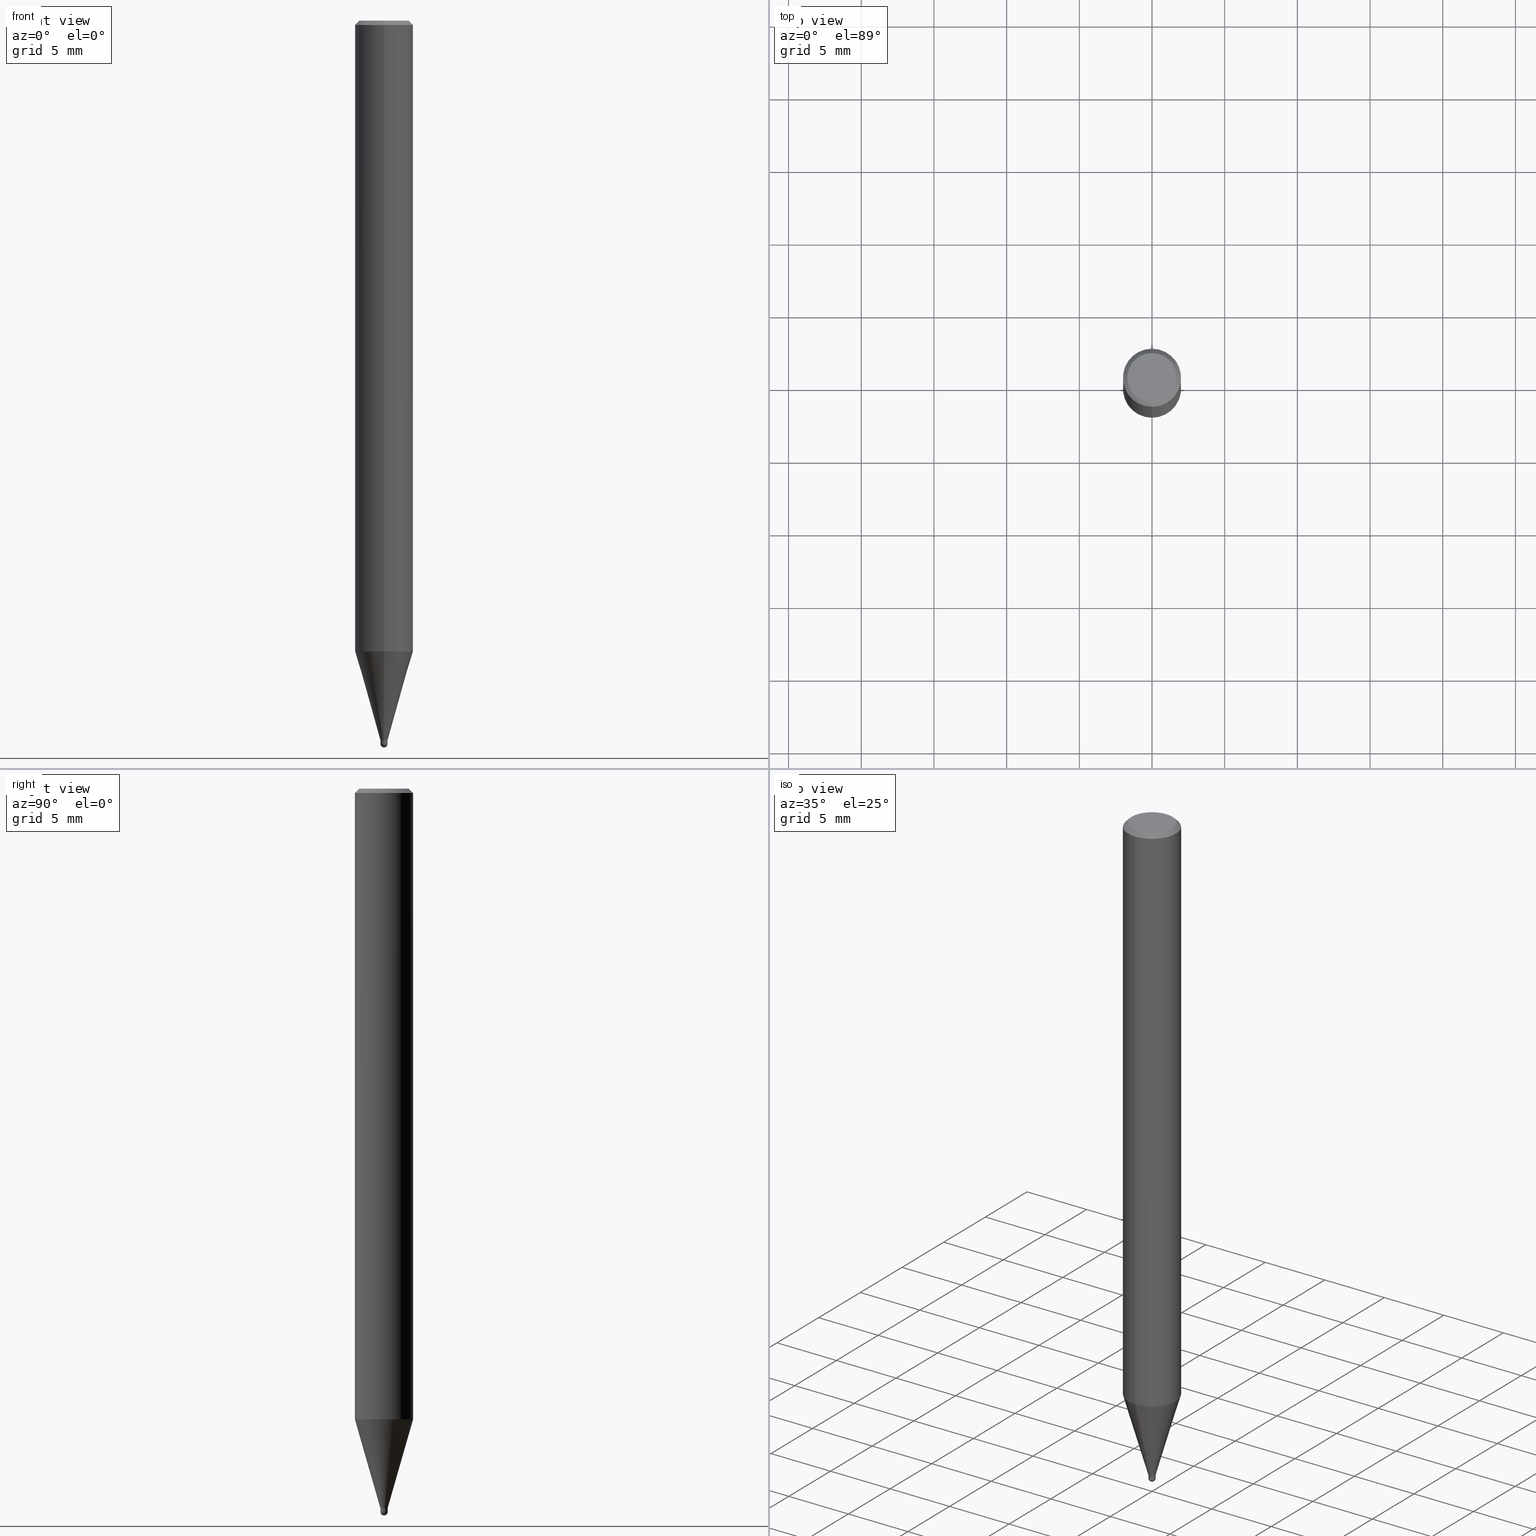
[diagram: canonical four-view strip — front | top / right | iso, engineering-drawing reading convention]
A machine part, canonical four-view strip (front | top / right | iso — engineering-drawing reading convention). The complete STEP part file that produces these views, byte-faithful:
ISO-10303-21;
HEADER;
FILE_DESCRIPTION(('no description'),'unknown implementation level');
FILE_NAME('HSB2005-0050-Huellk.stp','  ',('CIMSOURCE GmbH'),('CADClick - KiM GmbH - www.kimweb.de'),'unknown preprocess','ACIS','unknown authorization');
FILE_SCHEMA(('automotive_design'));
ENDSEC;
DATA;
#1=MECHANICAL_DESIGN_GEOMETRIC_PRESENTATION_REPRESENTATION(' ',(#14,#15,#16,#17,#18,#19,#20,#21,#22,#23,#24,#25,#26,#27,#28,#29,#30,#31,#32,#33,#34,#35,#36,#37,#38,#39,#40,#41,#42,#43,#44,#45,#46,#47,#48,#49,#50,#51,#52,#53,#54,#55,#56,#57,#58,#59,#60,#61,#62,#63,#64,#65,#66),#10);
#2=PRODUCT_DEFINITION_CONTEXT('',#67,'design');
#3=APPLICATION_PROTOCOL_DEFINITION('INTERNATIONAL STANDARD','automotive_design',1994,#67);
#4=PRODUCT_CATEGORY_RELATIONSHIP('NONE','NONE',#68,#69);
#5=SHAPE_DEFINITION_REPRESENTATION(#70,#71);
#6=PRODUCT_DEFINITION_CONTEXT('',#72,'design');
#7=APPLICATION_PROTOCOL_DEFINITION('INTERNATIONAL STANDARD','automotive_design',1994,#72);
#8=PRODUCT_CATEGORY_RELATIONSHIP('NONE','NONE',#73,#74);
#9=SHAPE_DEFINITION_REPRESENTATION(#75,#76);
#10= (GEOMETRIC_REPRESENTATION_CONTEXT(3)GLOBAL_UNCERTAINTY_ASSIGNED_CONTEXT((#79))GLOBAL_UNIT_ASSIGNED_CONTEXT((#81,#82,#83))REPRESENTATION_CONTEXT('NONE','WORKSPACE'));
#14=STYLED_ITEM('',(#85),#86);
#15=STYLED_ITEM('',(#87),#88);
#16=STYLED_ITEM('',(#89),#90);
#17=STYLED_ITEM('',(#91),#92);
#18=STYLED_ITEM('',(#93),#94);
#19=STYLED_ITEM('',(#95),#96);
#20=STYLED_ITEM('',(#97),#98);
#21=STYLED_ITEM('',(#99),#100);
#22=STYLED_ITEM('',(#101),#102);
#23=STYLED_ITEM('',(#103),#104);
#24=STYLED_ITEM('',(#105),#106);
#25=STYLED_ITEM('',(#107),#108);
#26=STYLED_ITEM('',(#109),#110);
#27=STYLED_ITEM('',(#111),#112);
#28=STYLED_ITEM('',(#113),#114);
#29=STYLED_ITEM('',(#115),#116);
#30=STYLED_ITEM('',(#117),#118);
#31=STYLED_ITEM('',(#119),#120);
#32=STYLED_ITEM('',(#121),#122);
#33=STYLED_ITEM('',(#123),#124);
#34=STYLED_ITEM('',(#125),#126);
#35=STYLED_ITEM('',(#127),#128);
#36=STYLED_ITEM('',(#129),#130);
#37=STYLED_ITEM('',(#131),#132);
#38=STYLED_ITEM('',(#133),#134);
#39=STYLED_ITEM('',(#135),#136);
#40=STYLED_ITEM('',(#137),#138);
#41=STYLED_ITEM('',(#139),#140);
#42=STYLED_ITEM('',(#141),#142);
#43=STYLED_ITEM('',(#143),#144);
#44=STYLED_ITEM('',(#145),#146);
#45=STYLED_ITEM('',(#147),#148);
#46=STYLED_ITEM('',(#149),#150);
#47=STYLED_ITEM('',(#151),#152);
#48=STYLED_ITEM('',(#153),#154);
#49=STYLED_ITEM('',(#155),#156);
#50=STYLED_ITEM('',(#157),#158);
#51=STYLED_ITEM('',(#159),#160);
#52=STYLED_ITEM('',(#161),#162);
#53=STYLED_ITEM('',(#163),#164);
#54=STYLED_ITEM('',(#165),#166);
#55=STYLED_ITEM('',(#167),#168);
#56=STYLED_ITEM('',(#169),#170);
#57=STYLED_ITEM('',(#171),#172);
#58=STYLED_ITEM('',(#173),#174);
#59=STYLED_ITEM('',(#175),#176);
#60=STYLED_ITEM('',(#177),#178);
#61=STYLED_ITEM('',(#179),#180);
#62=STYLED_ITEM('',(#181),#182);
#63=STYLED_ITEM('',(#183),#184);
#64=STYLED_ITEM('',(#185),#186);
#65=STYLED_ITEM('',(#187),#188);
#66=STYLED_ITEM('',(#189),#190);
#67=APPLICATION_CONTEXT(' ');
#68=PRODUCT_CATEGORY('part','NONE');
#69=PRODUCT_RELATED_PRODUCT_CATEGORY('detail',' ',(#191));
#70=PRODUCT_DEFINITION_SHAPE('NONE','NONE',#192);
#71=ADVANCED_BREP_SHAPE_REPRESENTATION('1',(#142,#193),#10);
#72=APPLICATION_CONTEXT(' ');
#73=PRODUCT_CATEGORY('part','NONE');
#74=PRODUCT_RELATED_PRODUCT_CATEGORY('detail',' ',(#194));
#75=PRODUCT_DEFINITION_SHAPE('NONE','NONE',#195);
#76=ADVANCED_BREP_SHAPE_REPRESENTATION('2',(#146,#196),#10);
#79=UNCERTAINTY_MEASURE_WITH_UNIT(LENGTH_MEASURE(1.0E-006),#81,'','');
#81= (CONVERSION_BASED_UNIT('MILLIMETRE',#199)LENGTH_UNIT()NAMED_UNIT(#202));
#82= (NAMED_UNIT(#204)PLANE_ANGLE_UNIT()SI_UNIT($,.RADIAN.));
#83= (NAMED_UNIT(#204)SOLID_ANGLE_UNIT()SI_UNIT($,.STERADIAN.));
#85=PRESENTATION_STYLE_ASSIGNMENT((#210));
#86=EDGE_CURVE('',#156,#134,#211,.T.);
#87=PRESENTATION_STYLE_ASSIGNMENT((#212));
#88=EDGE_CURVE('',#140,#98,#213,.T.);
#89=PRESENTATION_STYLE_ASSIGNMENT((#214));
#90=EDGE_CURVE('',#98,#140,#215,.T.);
#91=PRESENTATION_STYLE_ASSIGNMENT((#216));
#92=EDGE_CURVE('',#150,#134,#217,.T.);
#93=PRESENTATION_STYLE_ASSIGNMENT((#218));
#94=VERTEX_POINT('',#219);
#95=PRESENTATION_STYLE_ASSIGNMENT((#220));
#96=EDGE_CURVE('',#94,#98,#221,.T.);
#97=PRESENTATION_STYLE_ASSIGNMENT((#222));
#98=VERTEX_POINT('',#223);
#99=PRESENTATION_STYLE_ASSIGNMENT((#224));
#100=EDGE_CURVE('',#94,#150,#225,.T.);
#101=PRESENTATION_STYLE_ASSIGNMENT((#226));
#102=EDGE_CURVE('',#106,#122,#227,.T.);
#103=PRESENTATION_STYLE_ASSIGNMENT((#228));
#104=ADVANCED_FACE('',(#229),#230,.T.);
#105=PRESENTATION_STYLE_ASSIGNMENT((#231));
#106=VERTEX_POINT('',#232);
#107=PRESENTATION_STYLE_ASSIGNMENT((#233));
#108=ADVANCED_FACE('',(#234),#235,.T.);
#109=PRESENTATION_STYLE_ASSIGNMENT((#236));
#110=ADVANCED_FACE('',(#237),#238,.T.);
#111=PRESENTATION_STYLE_ASSIGNMENT((#239));
#112=EDGE_CURVE('',#150,#94,#240,.T.);
#113=PRESENTATION_STYLE_ASSIGNMENT((#241));
#114=EDGE_CURVE('',#126,#174,#242,.T.);
#115=PRESENTATION_STYLE_ASSIGNMENT((#243));
#116=ADVANCED_FACE('',(#244),#245,.T.);
#117=PRESENTATION_STYLE_ASSIGNMENT((#246));
#118=ADVANCED_FACE('',(#247),#248,.T.);
#119=PRESENTATION_STYLE_ASSIGNMENT((#249));
#120=EDGE_CURVE('',#172,#190,#250,.T.);
#121=PRESENTATION_STYLE_ASSIGNMENT((#251));
#122=VERTEX_POINT('',#252);
#123=PRESENTATION_STYLE_ASSIGNMENT((#253));
#124=VERTEX_POINT('',#254);
#125=PRESENTATION_STYLE_ASSIGNMENT((#255));
#126=VERTEX_POINT('',#256);
#127=PRESENTATION_STYLE_ASSIGNMENT((#257));
#128=ADVANCED_FACE('',(#258),#259,.T.);
#129=PRESENTATION_STYLE_ASSIGNMENT((#260));
#130=ADVANCED_FACE('',(#261),#262,.T.);
#131=PRESENTATION_STYLE_ASSIGNMENT((#263));
#132=EDGE_CURVE('',#134,#156,#264,.T.);
#133=PRESENTATION_STYLE_ASSIGNMENT((#265));
#134=VERTEX_POINT('',#266);
#135=PRESENTATION_STYLE_ASSIGNMENT((#267));
#136=EDGE_CURVE('',#156,#94,#268,.T.);
#137=PRESENTATION_STYLE_ASSIGNMENT((#269));
#138=EDGE_CURVE('',#124,#172,#270,.T.);
#139=PRESENTATION_STYLE_ASSIGNMENT((#271));
#140=VERTEX_POINT('',#272);
#141=PRESENTATION_STYLE_ASSIGNMENT((#273));
#142=MANIFOLD_SOLID_BREP('1',#274);
#143=PRESENTATION_STYLE_ASSIGNMENT((#275));
#144=VERTEX_POINT('',#276);
#145=PRESENTATION_STYLE_ASSIGNMENT((#277));
#146=MANIFOLD_SOLID_BREP('2',#278);
#147=PRESENTATION_STYLE_ASSIGNMENT((#279));
#148=EDGE_CURVE('',#106,#174,#280,.T.);
#149=PRESENTATION_STYLE_ASSIGNMENT((#281));
#150=VERTEX_POINT('',#282);
#151=PRESENTATION_STYLE_ASSIGNMENT((#283));
#152=EDGE_CURVE('',#126,#122,#284,.T.);
#153=PRESENTATION_STYLE_ASSIGNMENT((#285));
#154=EDGE_CURVE('',#140,#150,#286,.T.);
#155=PRESENTATION_STYLE_ASSIGNMENT((#287));
#156=VERTEX_POINT('',#288);
#157=PRESENTATION_STYLE_ASSIGNMENT((#289));
#158=ADVANCED_FACE('',(#290),#291,.T.);
#159=PRESENTATION_STYLE_ASSIGNMENT((#292));
#160=EDGE_CURVE('',#190,#172,#293,.T.);
#161=PRESENTATION_STYLE_ASSIGNMENT((#294));
#162=ADVANCED_FACE('',(#295),#296,.T.);
#163=PRESENTATION_STYLE_ASSIGNMENT((#297));
#164=ADVANCED_FACE('',(#298,#299),#300,.T.);
#165=PRESENTATION_STYLE_ASSIGNMENT((#301));
#166=ADVANCED_FACE('',(#302),#303,.T.);
#167=PRESENTATION_STYLE_ASSIGNMENT((#304));
#168=ADVANCED_FACE('',(#305),#306,.T.);
#169=PRESENTATION_STYLE_ASSIGNMENT((#307));
#170=EDGE_CURVE('',#124,#144,#308,.T.);
#171=PRESENTATION_STYLE_ASSIGNMENT((#309));
#172=VERTEX_POINT('',#310);
#173=PRESENTATION_STYLE_ASSIGNMENT((#311));
#174=VERTEX_POINT('',#312);
#175=PRESENTATION_STYLE_ASSIGNMENT((#313));
#176=ADVANCED_FACE('',(#314),#315,.T.);
#177=PRESENTATION_STYLE_ASSIGNMENT((#316));
#178=ADVANCED_FACE('',(#317),#318,.T.);
#179=PRESENTATION_STYLE_ASSIGNMENT((#319));
#180=EDGE_CURVE('',#190,#144,#320,.T.);
#181=PRESENTATION_STYLE_ASSIGNMENT((#321));
#182=EDGE_CURVE('',#124,#144,#322,.T.);
#183=PRESENTATION_STYLE_ASSIGNMENT((#323));
#184=EDGE_CURVE('',#144,#124,#324,.T.);
#185=PRESENTATION_STYLE_ASSIGNMENT((#325));
#186=EDGE_CURVE('',#122,#106,#326,.T.);
#187=PRESENTATION_STYLE_ASSIGNMENT((#327));
#188=EDGE_CURVE('',#174,#126,#328,.T.);
#189=PRESENTATION_STYLE_ASSIGNMENT((#329));
#190=VERTEX_POINT('',#330);
#191=PRODUCT('1','1','PART-1-DESC',(#331));
#192=PRODUCT_DEFINITION('NONE','NONE',#332,#2);
#193=AXIS2_PLACEMENT_3D('',#333,#334,#335);
#194=PRODUCT('2','2','PART-2-DESC',(#336));
#195=PRODUCT_DEFINITION('NONE','NONE',#337,#6);
#196=AXIS2_PLACEMENT_3D('',#338,#339,#340);
#199=LENGTH_MEASURE_WITH_UNIT(LENGTH_MEASURE(1.0),#341);
#202=DIMENSIONAL_EXPONENTS(1.0,0.0,0.0,0.0,0.0,0.0,0.0);
#204=DIMENSIONAL_EXPONENTS(0.0,0.0,0.0,0.0,0.0,0.0,0.0);
#210=CURVE_STYLE('',#342,POSITIVE_LENGTH_MEASURE(1.0E-006),#343);
#211=CIRCLE('',#344,1.7);
#212=CURVE_STYLE('',#345,POSITIVE_LENGTH_MEASURE(1.0E-006),#346);
#213=CIRCLE('',#347,2.0);
#214=CURVE_STYLE('',#348,POSITIVE_LENGTH_MEASURE(1.0E-006),#349);
#215=CIRCLE('',#350,2.0);
#216=CURVE_STYLE('',#351,POSITIVE_LENGTH_MEASURE(1.0E-006),#352);
#217=LINE('',#353,#354);
#218=POINT_STYLE(' ',#355,POSITIVE_LENGTH_MEASURE(1.0E-006),#356);
#219=CARTESIAN_POINT('',(0.0,2.0,-0.299999999999997));
#220=CURVE_STYLE('',#357,POSITIVE_LENGTH_MEASURE(1.0E-006),#358);
#221=LINE('',#359,#360);
#222=POINT_STYLE(' ',#361,POSITIVE_LENGTH_MEASURE(1.0E-006),#362);
#223=CARTESIAN_POINT('',(0.0,2.0,-43.397));
#224=CURVE_STYLE('',#363,POSITIVE_LENGTH_MEASURE(1.0E-006),#364);
#225=CIRCLE('',#365,2.0);
#226=CURVE_STYLE('',#366,POSITIVE_LENGTH_MEASURE(1.0E-006),#367);
#227=CIRCLE('',#368,1.99995);
#228=SURFACE_STYLE_USAGE(.BOTH.,#369);
#229=FACE_OUTER_BOUND('',#370,.T.);
#230=CONICAL_SURFACE('',#371,1.85,0.785398163397453);
#231=POINT_STYLE(' ',#372,POSITIVE_LENGTH_MEASURE(1.0E-006),#373);
#232=CARTESIAN_POINT('',(0.0,1.99995,-43.397));
#233=SURFACE_STYLE_USAGE(.BOTH.,#374);
#234=FACE_OUTER_BOUND('',#375,.T.);
#235=PLANE('',#376);
#236=SURFACE_STYLE_USAGE(.BOTH.,#377);
#237=FACE_OUTER_BOUND('',#378,.T.);
#238=CYLINDRICAL_SURFACE('',#379,2.0);
#239=CURVE_STYLE('',#380,POSITIVE_LENGTH_MEASURE(1.0E-006),#381);
#240=CIRCLE('',#382,2.0);
#241=CURVE_STYLE('',#383,POSITIVE_LENGTH_MEASURE(1.0E-006),#384);
#242=CIRCLE('',#385,0.24995);
#243=SURFACE_STYLE_USAGE(.BOTH.,#386);
#244=FACE_OUTER_BOUND('',#387,.T.);
#245=CONICAL_SURFACE('',#388,1.12495,0.27925160696619);
#246=SURFACE_STYLE_USAGE(.BOTH.,#389);
#247=FACE_OUTER_BOUND('',#390,.T.);
#248=CONICAL_SURFACE('',#391,1.85,0.785398163397453);
#249=CURVE_STYLE('',#392,POSITIVE_LENGTH_MEASURE(1.0E-006),#393);
#250=CIRCLE('',#394,0.2499);
#251=POINT_STYLE(' ',#395,POSITIVE_LENGTH_MEASURE(1.0E-006),#396);
#252=CARTESIAN_POINT('',(2.44915147732706E-016,-1.99995,-43.397));
#253=POINT_STYLE(' ',#397,POSITIVE_LENGTH_MEASURE(1.0E-006),#398);
#254=CARTESIAN_POINT('',(3.06151588455594E-017,-0.25,-49.75));
#255=POINT_STYLE(' ',#399,POSITIVE_LENGTH_MEASURE(1.0E-006),#400);
#256=CARTESIAN_POINT('',(3.06090358137903E-017,-0.24995,-49.5));
#257=SURFACE_STYLE_USAGE(.BOTH.,#401);
#258=FACE_OUTER_BOUND('',#402,.T.);
#259=SPHERICAL_SURFACE('',#403,0.25);
#260=SURFACE_STYLE_USAGE(.BOTH.,#404);
#261=FACE_OUTER_BOUND('',#405,.T.);
#262=CONICAL_SURFACE('',#406,0.24995,0.000399999978666625);
#263=CURVE_STYLE('',#407,POSITIVE_LENGTH_MEASURE(1.0E-006),#408);
#264=CIRCLE('',#409,1.7);
#265=POINT_STYLE(' ',#410,POSITIVE_LENGTH_MEASURE(1.0E-006),#411);
#266=CARTESIAN_POINT('',(2.08183080149804E-016,-1.7,0.0));
#267=CURVE_STYLE('',#412,POSITIVE_LENGTH_MEASURE(1.0E-006),#413);
#268=LINE('',#414,#415);
#269=CURVE_STYLE('',#416,POSITIVE_LENGTH_MEASURE(1.0E-006),#417);
#270=LINE('',#418,#419);
#271=POINT_STYLE(' ',#420,POSITIVE_LENGTH_MEASURE(1.0E-006),#421);
#272=CARTESIAN_POINT('',(2.44921270764475E-016,-2.0,-43.397));
#273=SURFACE_STYLE_USAGE(.BOTH.,#422);
#274=CLOSED_SHELL('',(#116,#162,#118,#164,#108,#104,#110,#166,#168));
#275=POINT_STYLE(' ',#423,POSITIVE_LENGTH_MEASURE(1.0E-006),#424);
#276=CARTESIAN_POINT('',(0.0,0.25,-49.75));
#277=SURFACE_STYLE_USAGE(.BOTH.,#425);
#278=CLOSED_SHELL('',(#176,#130,#178,#158,#128));
#279=CURVE_STYLE('',#426,POSITIVE_LENGTH_MEASURE(1.0E-006),#427);
#280=LINE('',#428,#429);
#281=POINT_STYLE(' ',#430,POSITIVE_LENGTH_MEASURE(1.0E-006),#431);
#282=CARTESIAN_POINT('',(2.44921270764475E-016,-2.0,-0.299999999999997));
#283=CURVE_STYLE('',#432,POSITIVE_LENGTH_MEASURE(1.0E-006),#433);
#284=LINE('',#434,#435);
#285=CURVE_STYLE('',#436,POSITIVE_LENGTH_MEASURE(1.0E-006),#437);
#286=LINE('',#438,#439);
#287=POINT_STYLE(' ',#440,POSITIVE_LENGTH_MEASURE(1.0E-006),#441);
#288=CARTESIAN_POINT('',(0.0,1.7,0.0));
#289=SURFACE_STYLE_USAGE(.BOTH.,#442);
#290=FACE_OUTER_BOUND('',#443,.T.);
#291=CONICAL_SURFACE('',#444,0.24995,0.000399999978666625);
#292=CURVE_STYLE('',#445,POSITIVE_LENGTH_MEASURE(1.0E-006),#446);
#293=CIRCLE('',#447,0.2499);
#294=SURFACE_STYLE_USAGE(.BOTH.,#448);
#295=FACE_OUTER_BOUND('',#449,.T.);
#296=CYLINDRICAL_SURFACE('',#450,2.0);
#297=SURFACE_STYLE_USAGE(.BOTH.,#451);
#298=FACE_OUTER_BOUND('',#452,.T.);
#299=FACE_BOUND('',#453,.T.);
#300=PLANE('',#454);
#301=SURFACE_STYLE_USAGE(.BOTH.,#455);
#302=FACE_OUTER_BOUND('',#456,.T.);
#303=CONICAL_SURFACE('',#457,1.12495,0.27925160696619);
#304=SURFACE_STYLE_USAGE(.BOTH.,#458);
#305=FACE_OUTER_BOUND('',#459,.T.);
#306=PLANE('',#460);
#307=CURVE_STYLE('',#461,POSITIVE_LENGTH_MEASURE(1.0E-006),#462);
#308=CIRCLE('',#463,0.25);
#309=POINT_STYLE(' ',#464,POSITIVE_LENGTH_MEASURE(1.0E-006),#465);
#310=CARTESIAN_POINT('',(3.06029127820212E-017,-0.2499,-49.5));
#311=POINT_STYLE(' ',#466,POSITIVE_LENGTH_MEASURE(1.0E-006),#467);
#312=CARTESIAN_POINT('',(0.0,0.24995,-49.5));
#313=SURFACE_STYLE_USAGE(.BOTH.,#468);
#314=FACE_OUTER_BOUND('',#469,.T.);
#315=SPHERICAL_SURFACE('',#470,0.25);
#316=SURFACE_STYLE_USAGE(.BOTH.,#471);
#317=FACE_OUTER_BOUND('',#472,.T.);
#318=PLANE('',#473);
#319=CURVE_STYLE('',#474,POSITIVE_LENGTH_MEASURE(1.0E-006),#475);
#320=LINE('',#476,#477);
#321=CURVE_STYLE('',#478,POSITIVE_LENGTH_MEASURE(1.0E-006),#479);
#322=CIRCLE('',#480,0.25);
#323=CURVE_STYLE('',#481,POSITIVE_LENGTH_MEASURE(1.0E-006),#482);
#324=CIRCLE('',#483,0.25);
#325=CURVE_STYLE('',#484,POSITIVE_LENGTH_MEASURE(1.0E-006),#485);
#326=CIRCLE('',#486,1.99995);
#327=CURVE_STYLE('',#487,POSITIVE_LENGTH_MEASURE(1.0E-006),#488);
#328=CIRCLE('',#489,0.24995);
#329=POINT_STYLE(' ',#490,POSITIVE_LENGTH_MEASURE(1.0E-006),#491);
#330=CARTESIAN_POINT('',(0.0,0.2499,-49.5));
#331=PRODUCT_CONTEXT('',#67,'mechanical');
#332=PRODUCT_DEFINITION_FORMATION_WITH_SPECIFIED_SOURCE(' ','NONE',#191,.NOT_KNOWN.);
#333=CARTESIAN_POINT('',(0.0,0.0,0.0));
#334=DIRECTION('',(0.0,0.0,1.0));
#335=DIRECTION('',(1.0,0.0,0.0));
#336=PRODUCT_CONTEXT('',#72,'mechanical');
#337=PRODUCT_DEFINITION_FORMATION_WITH_SPECIFIED_SOURCE(' ','NONE',#194,.NOT_KNOWN.);
#338=CARTESIAN_POINT('',(0.0,0.0,0.0));
#339=DIRECTION('',(0.0,0.0,1.0));
#340=DIRECTION('',(1.0,0.0,0.0));
#341= (NAMED_UNIT(#202)LENGTH_UNIT()SI_UNIT(.MILLI.,.METRE.));
#342=DRAUGHTING_PRE_DEFINED_CURVE_FONT('continuous');
#343=COLOUR_RGB('',0.498039215803146,0.498039215803146,0.498039215803146);
#344=AXIS2_PLACEMENT_3D('',#493,#494,#495);
#345=DRAUGHTING_PRE_DEFINED_CURVE_FONT('continuous');
#346=COLOUR_RGB('',0.498039215803146,0.498039215803146,0.498039215803146);
#347=AXIS2_PLACEMENT_3D('',#496,#497,#498);
#348=DRAUGHTING_PRE_DEFINED_CURVE_FONT('continuous');
#349=COLOUR_RGB('',0.498039215803146,0.498039215803146,0.498039215803146);
#350=AXIS2_PLACEMENT_3D('',#499,#500,#501);
#351=DRAUGHTING_PRE_DEFINED_CURVE_FONT('continuous');
#352=COLOUR_RGB('',0.498039215803146,0.498039215803146,0.498039215803146);
#353=CARTESIAN_POINT('',(2.2655217545714E-016,-1.85,-0.149999999999999));
#354=VECTOR('',#502,1.0);
#355=PRE_DEFINED_MARKER('');
#356=COLOUR_RGB('',0.498039215803146,0.498039215803146,0.498039215803146);
#357=DRAUGHTING_PRE_DEFINED_CURVE_FONT('continuous');
#358=COLOUR_RGB('',0.498039215803146,0.498039215803146,0.498039215803146);
#359=CARTESIAN_POINT('',(-2.44921270764475E-016,2.0,-21.8485));
#360=VECTOR('',#503,1.0);
#361=PRE_DEFINED_MARKER('');
#362=COLOUR_RGB('',0.498039215803146,0.498039215803146,0.498039215803146);
#363=DRAUGHTING_PRE_DEFINED_CURVE_FONT('continuous');
#364=COLOUR_RGB('',0.498039215803146,0.498039215803146,0.498039215803146);
#365=AXIS2_PLACEMENT_3D('',#504,#505,#506);
#366=DRAUGHTING_PRE_DEFINED_CURVE_FONT('continuous');
#367=COLOUR_RGB('',0.498039215803146,0.498039215803146,0.498039215803146);
#368=AXIS2_PLACEMENT_3D('',#507,#508,#509);
#369=SURFACE_SIDE_STYLE('',(#510));
#370=EDGE_LOOP('',(#511,#512,#513,#514));
#371=AXIS2_PLACEMENT_3D('',#515,#516,#517);
#372=PRE_DEFINED_MARKER('');
#373=COLOUR_RGB('',0.498039215803146,0.498039215803146,0.498039215803146);
#374=SURFACE_SIDE_STYLE('',(#518));
#375=EDGE_LOOP('',(#519,#520));
#376=AXIS2_PLACEMENT_3D('',#521,#522,#523);
#377=SURFACE_SIDE_STYLE('',(#524));
#378=EDGE_LOOP('',(#525,#526,#527,#528));
#379=AXIS2_PLACEMENT_3D('',#529,#530,#531);
#380=DRAUGHTING_PRE_DEFINED_CURVE_FONT('continuous');
#381=COLOUR_RGB('',0.498039215803146,0.498039215803146,0.498039215803146);
#382=AXIS2_PLACEMENT_3D('',#532,#533,#534);
#383=DRAUGHTING_PRE_DEFINED_CURVE_FONT('continuous');
#384=COLOUR_RGB('',0.498039215803146,0.498039215803146,0.498039215803146);
#385=AXIS2_PLACEMENT_3D('',#535,#536,#537);
#386=SURFACE_SIDE_STYLE('',(#538));
#387=EDGE_LOOP('',(#539,#540,#541,#542));
#388=AXIS2_PLACEMENT_3D('',#543,#544,#545);
#389=SURFACE_SIDE_STYLE('',(#546));
#390=EDGE_LOOP('',(#547,#548,#549,#550));
#391=AXIS2_PLACEMENT_3D('',#551,#552,#553);
#392=DRAUGHTING_PRE_DEFINED_CURVE_FONT('continuous');
#393=COLOUR_RGB('',0.800000011920929,0.800000011920929,0.800000011920929);
#394=AXIS2_PLACEMENT_3D('',#554,#555,#556);
#395=PRE_DEFINED_MARKER('');
#396=COLOUR_RGB('',0.498039215803146,0.498039215803146,0.498039215803146);
#397=PRE_DEFINED_MARKER('');
#398=COLOUR_RGB('',0.800000011920929,0.800000011920929,0.800000011920929);
#399=PRE_DEFINED_MARKER('');
#400=COLOUR_RGB('',0.498039215803146,0.498039215803146,0.498039215803146);
#401=SURFACE_SIDE_STYLE('',(#557));
#402=EDGE_LOOP('',(#558,#559));
#403=AXIS2_PLACEMENT_3D('',#560,#561,#562);
#404=SURFACE_SIDE_STYLE('',(#563));
#405=EDGE_LOOP('',(#564,#565,#566,#567));
#406=AXIS2_PLACEMENT_3D('',#568,#569,#570);
#407=DRAUGHTING_PRE_DEFINED_CURVE_FONT('continuous');
#408=COLOUR_RGB('',0.498039215803146,0.498039215803146,0.498039215803146);
#409=AXIS2_PLACEMENT_3D('',#571,#572,#573);
#410=PRE_DEFINED_MARKER('');
#411=COLOUR_RGB('',0.498039215803146,0.498039215803146,0.498039215803146);
#412=DRAUGHTING_PRE_DEFINED_CURVE_FONT('continuous');
#413=COLOUR_RGB('',0.498039215803146,0.498039215803146,0.498039215803146);
#414=CARTESIAN_POINT('',(-2.2655217545714E-016,1.85,-0.149999999999999));
#415=VECTOR('',#574,1.0);
#416=DRAUGHTING_PRE_DEFINED_CURVE_FONT('continuous');
#417=COLOUR_RGB('',0.800000011920929,0.800000011920929,0.800000011920929);
#418=CARTESIAN_POINT('',(3.06090358137903E-017,-0.24995,-49.625));
#419=VECTOR('',#575,1.0);
#420=PRE_DEFINED_MARKER('');
#421=COLOUR_RGB('',0.498039215803146,0.498039215803146,0.498039215803146);
#422=SURFACE_SIDE_STYLE('',(#576));
#423=PRE_DEFINED_MARKER('');
#424=COLOUR_RGB('',0.800000011920929,0.800000011920929,0.800000011920929);
#425=SURFACE_SIDE_STYLE('',(#577));
#426=DRAUGHTING_PRE_DEFINED_CURVE_FONT('continuous');
#427=COLOUR_RGB('',0.498039215803146,0.498039215803146,0.498039215803146);
#428=CARTESIAN_POINT('',(-1.37762091773248E-016,1.12495,-46.4485));
#429=VECTOR('',#578,1.0);
#430=PRE_DEFINED_MARKER('');
#431=COLOUR_RGB('',0.498039215803146,0.498039215803146,0.498039215803146);
#432=DRAUGHTING_PRE_DEFINED_CURVE_FONT('continuous');
#433=COLOUR_RGB('',0.498039215803146,0.498039215803146,0.498039215803146);
#434=CARTESIAN_POINT('',(1.37762091773248E-016,-1.12495,-46.4485));
#435=VECTOR('',#579,1.0);
#436=DRAUGHTING_PRE_DEFINED_CURVE_FONT('continuous');
#437=COLOUR_RGB('',0.498039215803146,0.498039215803146,0.498039215803146);
#438=CARTESIAN_POINT('',(2.44921270764475E-016,-2.0,-21.8485));
#439=VECTOR('',#580,1.0);
#440=PRE_DEFINED_MARKER('');
#441=COLOUR_RGB('',0.498039215803146,0.498039215803146,0.498039215803146);
#442=SURFACE_SIDE_STYLE('',(#581));
#443=EDGE_LOOP('',(#582,#583,#584,#585));
#444=AXIS2_PLACEMENT_3D('',#586,#587,#588);
#445=DRAUGHTING_PRE_DEFINED_CURVE_FONT('continuous');
#446=COLOUR_RGB('',0.800000011920929,0.800000011920929,0.800000011920929);
#447=AXIS2_PLACEMENT_3D('',#589,#590,#591);
#448=SURFACE_SIDE_STYLE('',(#592));
#449=EDGE_LOOP('',(#593,#594,#595,#596));
#450=AXIS2_PLACEMENT_3D('',#597,#598,#599);
#451=SURFACE_SIDE_STYLE('',(#600));
#452=EDGE_LOOP('',(#601,#602));
#453=EDGE_LOOP('',(#603,#604));
#454=AXIS2_PLACEMENT_3D('',#605,#606,#607);
#455=SURFACE_SIDE_STYLE('',(#608));
#456=EDGE_LOOP('',(#609,#610,#611,#612));
#457=AXIS2_PLACEMENT_3D('',#613,#614,#615);
#458=SURFACE_SIDE_STYLE('',(#616));
#459=EDGE_LOOP('',(#617,#618));
#460=AXIS2_PLACEMENT_3D('',#619,#620,#621);
#461=DRAUGHTING_PRE_DEFINED_CURVE_FONT('continuous');
#462=COLOUR_RGB('',0.800000011920929,0.800000011920929,0.800000011920929);
#463=AXIS2_PLACEMENT_3D('',#622,#623,#624);
#464=PRE_DEFINED_MARKER('');
#465=COLOUR_RGB('',0.800000011920929,0.800000011920929,0.800000011920929);
#466=PRE_DEFINED_MARKER('');
#467=COLOUR_RGB('',0.498039215803146,0.498039215803146,0.498039215803146);
#468=SURFACE_SIDE_STYLE('',(#625));
#469=EDGE_LOOP('',(#626,#627));
#470=AXIS2_PLACEMENT_3D('',#628,#629,#630);
#471=SURFACE_SIDE_STYLE('',(#631));
#472=EDGE_LOOP('',(#632,#633));
#473=AXIS2_PLACEMENT_3D('',#634,#635,#636);
#474=DRAUGHTING_PRE_DEFINED_CURVE_FONT('continuous');
#475=COLOUR_RGB('',0.800000011920929,0.800000011920929,0.800000011920929);
#476=CARTESIAN_POINT('',(-3.06090358137903E-017,0.24995,-49.625));
#477=VECTOR('',#637,1.0);
#478=DRAUGHTING_PRE_DEFINED_CURVE_FONT('continuous');
#479=COLOUR_RGB('',0.800000011920929,0.800000011920929,0.800000011920929);
#480=AXIS2_PLACEMENT_3D('',#638,#639,#640);
#481=DRAUGHTING_PRE_DEFINED_CURVE_FONT('continuous');
#482=COLOUR_RGB('',0.800000011920929,0.800000011920929,0.800000011920929);
#483=AXIS2_PLACEMENT_3D('',#641,#642,#643);
#484=DRAUGHTING_PRE_DEFINED_CURVE_FONT('continuous');
#485=COLOUR_RGB('',0.498039215803146,0.498039215803146,0.498039215803146);
#486=AXIS2_PLACEMENT_3D('',#644,#645,#646);
#487=DRAUGHTING_PRE_DEFINED_CURVE_FONT('continuous');
#488=COLOUR_RGB('',0.498039215803146,0.498039215803146,0.498039215803146);
#489=AXIS2_PLACEMENT_3D('',#647,#648,#649);
#490=PRE_DEFINED_MARKER('');
#491=COLOUR_RGB('',0.800000011920929,0.800000011920929,0.800000011920929);
#493=CARTESIAN_POINT('',(0.0,0.0,0.0));
#494=DIRECTION('',(0.0,0.0,-1.0));
#495=DIRECTION('',(0.0,1.0,0.0));
#496=CARTESIAN_POINT('',(0.0,0.0,-43.397));
#497=DIRECTION('',(0.0,0.0,-1.0));
#498=DIRECTION('',(0.0,1.0,0.0));
#499=CARTESIAN_POINT('',(0.0,0.0,-43.397));
#500=DIRECTION('',(0.0,0.0,-1.0));
#501=DIRECTION('',(0.0,1.0,0.0));
#502=DIRECTION('',(-8.6592745707194E-017,0.707106781186551,0.707106781186544));
#503=DIRECTION('',(0.0,0.0,-1.0));
#504=CARTESIAN_POINT('',(0.0,0.0,-0.299999999999997));
#505=DIRECTION('',(0.0,0.0,-1.0));
#506=DIRECTION('',(0.0,1.0,0.0));
#507=CARTESIAN_POINT('',(0.0,0.0,-43.397));
#508=DIRECTION('',(0.0,0.0,-1.0));
#509=DIRECTION('',(0.0,1.0,0.0));
#510=SURFACE_STYLE_FILL_AREA(#650);
#511=ORIENTED_EDGE('',*,*,#136,.T.);
#512=ORIENTED_EDGE('',*,*,#112,.F.);
#513=ORIENTED_EDGE('',*,*,#92,.T.);
#514=ORIENTED_EDGE('',*,*,#132,.T.);
#515=CARTESIAN_POINT('',(0.0,0.0,-0.149999999999999));
#516=DIRECTION('',(0.0,-0.0,-1.0));
#517=DIRECTION('',(0.0,1.0,0.0));
#518=SURFACE_STYLE_FILL_AREA(#651);
#519=ORIENTED_EDGE('',*,*,#86,.F.);
#520=ORIENTED_EDGE('',*,*,#132,.F.);
#521=CARTESIAN_POINT('',(0.0,0.85,0.0));
#522=DIRECTION('',(-0.0,0.0,1.0));
#523=DIRECTION('',(0.0,-1.0,0.0));
#524=SURFACE_STYLE_FILL_AREA(#652);
#525=ORIENTED_EDGE('',*,*,#96,.T.);
#526=ORIENTED_EDGE('',*,*,#88,.F.);
#527=ORIENTED_EDGE('',*,*,#154,.T.);
#528=ORIENTED_EDGE('',*,*,#112,.T.);
#529=CARTESIAN_POINT('',(0.0,0.0,-21.8485));
#530=DIRECTION('',(-0.0,-0.0,1.0));
#531=DIRECTION('',(0.0,1.0,0.0));
#532=CARTESIAN_POINT('',(0.0,0.0,-0.299999999999997));
#533=DIRECTION('',(0.0,0.0,-1.0));
#534=DIRECTION('',(0.0,1.0,0.0));
#535=CARTESIAN_POINT('',(0.0,0.0,-49.5));
#536=DIRECTION('',(0.0,0.0,-1.0));
#537=DIRECTION('',(0.0,1.0,0.0));
#538=SURFACE_STYLE_FILL_AREA(#653);
#539=ORIENTED_EDGE('',*,*,#148,.F.);
#540=ORIENTED_EDGE('',*,*,#102,.T.);
#541=ORIENTED_EDGE('',*,*,#152,.F.);
#542=ORIENTED_EDGE('',*,*,#188,.F.);
#543=CARTESIAN_POINT('',(0.0,0.0,-46.4485));
#544=DIRECTION('',(-0.0,-0.0,1.0));
#545=DIRECTION('',(0.0,1.0,0.0));
#546=SURFACE_STYLE_FILL_AREA(#654);
#547=ORIENTED_EDGE('',*,*,#136,.F.);
#548=ORIENTED_EDGE('',*,*,#86,.T.);
#549=ORIENTED_EDGE('',*,*,#92,.F.);
#550=ORIENTED_EDGE('',*,*,#100,.F.);
#551=CARTESIAN_POINT('',(0.0,0.0,-0.149999999999999));
#552=DIRECTION('',(0.0,-0.0,-1.0));
#553=DIRECTION('',(0.0,1.0,0.0));
#554=CARTESIAN_POINT('',(0.0,0.0,-49.5));
#555=DIRECTION('',(0.0,0.0,-1.0));
#556=DIRECTION('',(0.0,1.0,0.0));
#557=SURFACE_STYLE_FILL_AREA(#655);
#558=ORIENTED_EDGE('',*,*,#170,.T.);
#559=ORIENTED_EDGE('',*,*,#184,.T.);
#560=CARTESIAN_POINT('',(0.0,0.0,-49.75));
#561=DIRECTION('',(0.0,1.0,0.0));
#562=DIRECTION('',(0.0,0.0,-1.0));
#563=SURFACE_STYLE_FILL_AREA(#656);
#564=ORIENTED_EDGE('',*,*,#180,.F.);
#565=ORIENTED_EDGE('',*,*,#160,.T.);
#566=ORIENTED_EDGE('',*,*,#138,.F.);
#567=ORIENTED_EDGE('',*,*,#184,.F.);
#568=CARTESIAN_POINT('',(0.0,0.0,-49.625));
#569=DIRECTION('',(0.0,-0.0,-1.0));
#570=DIRECTION('',(0.0,1.0,0.0));
#571=CARTESIAN_POINT('',(0.0,0.0,0.0));
#572=DIRECTION('',(0.0,0.0,-1.0));
#573=DIRECTION('',(0.0,1.0,0.0));
#574=DIRECTION('',(-8.6592745707194E-017,0.707106781186551,-0.707106781186544));
#575=DIRECTION('',(-4.89842502341498E-020,0.00039999996799996,0.99999992000001));
#576=SURFACE_STYLE_FILL_AREA(#657);
#577=SURFACE_STYLE_FILL_AREA(#658);
#578=DIRECTION('',(3.37545993768291E-017,-0.275636324043808,-0.961261991793921));
#579=DIRECTION('',(3.37545993768291E-017,-0.275636324043808,0.961261991793921));
#580=DIRECTION('',(-0.0,-0.0,1.0));
#581=SURFACE_STYLE_FILL_AREA(#659);
#582=ORIENTED_EDGE('',*,*,#180,.T.);
#583=ORIENTED_EDGE('',*,*,#182,.F.);
#584=ORIENTED_EDGE('',*,*,#138,.T.);
#585=ORIENTED_EDGE('',*,*,#120,.T.);
#586=CARTESIAN_POINT('',(0.0,0.0,-49.625));
#587=DIRECTION('',(0.0,-0.0,-1.0));
#588=DIRECTION('',(0.0,1.0,0.0));
#589=CARTESIAN_POINT('',(0.0,0.0,-49.5));
#590=DIRECTION('',(0.0,0.0,-1.0));
#591=DIRECTION('',(0.0,1.0,0.0));
#592=SURFACE_STYLE_FILL_AREA(#660);
#593=ORIENTED_EDGE('',*,*,#96,.F.);
#594=ORIENTED_EDGE('',*,*,#100,.T.);
#595=ORIENTED_EDGE('',*,*,#154,.F.);
#596=ORIENTED_EDGE('',*,*,#90,.F.);
#597=CARTESIAN_POINT('',(0.0,0.0,-21.8485));
#598=DIRECTION('',(-0.0,-0.0,1.0));
#599=DIRECTION('',(0.0,1.0,0.0));
#600=SURFACE_STYLE_FILL_AREA(#661);
#601=ORIENTED_EDGE('',*,*,#90,.T.);
#602=ORIENTED_EDGE('',*,*,#88,.T.);
#603=ORIENTED_EDGE('',*,*,#102,.F.);
#604=ORIENTED_EDGE('',*,*,#186,.F.);
#605=CARTESIAN_POINT('',(0.0,1.0,-43.397));
#606=DIRECTION('',(0.0,0.0,-1.0));
#607=DIRECTION('',(0.0,1.0,0.0));
#608=SURFACE_STYLE_FILL_AREA(#662);
#609=ORIENTED_EDGE('',*,*,#148,.T.);
#610=ORIENTED_EDGE('',*,*,#114,.F.);
#611=ORIENTED_EDGE('',*,*,#152,.T.);
#612=ORIENTED_EDGE('',*,*,#186,.T.);
#613=CARTESIAN_POINT('',(0.0,0.0,-46.4485));
#614=DIRECTION('',(-0.0,-0.0,1.0));
#615=DIRECTION('',(0.0,1.0,0.0));
#616=SURFACE_STYLE_FILL_AREA(#663);
#617=ORIENTED_EDGE('',*,*,#188,.T.);
#618=ORIENTED_EDGE('',*,*,#114,.T.);
#619=CARTESIAN_POINT('',(0.0,0.124975,-49.5));
#620=DIRECTION('',(0.0,0.0,-1.0));
#621=DIRECTION('',(0.0,1.0,0.0));
#622=CARTESIAN_POINT('',(0.0,0.0,-49.75));
#623=DIRECTION('',(1.0,0.0,1.22460635382238E-016));
#624=DIRECTION('',(-1.22460635382238E-016,0.0,1.0));
#625=SURFACE_STYLE_FILL_AREA(#664);
#626=ORIENTED_EDGE('',*,*,#170,.F.);
#627=ORIENTED_EDGE('',*,*,#182,.T.);
#628=CARTESIAN_POINT('',(0.0,0.0,-49.75));
#629=DIRECTION('',(0.0,1.0,0.0));
#630=DIRECTION('',(0.0,0.0,-1.0));
#631=SURFACE_STYLE_FILL_AREA(#665);
#632=ORIENTED_EDGE('',*,*,#160,.F.);
#633=ORIENTED_EDGE('',*,*,#120,.F.);
#634=CARTESIAN_POINT('',(0.0,0.12495,-49.5));
#635=DIRECTION('',(-0.0,0.0,1.0));
#636=DIRECTION('',(0.0,-1.0,0.0));
#637=DIRECTION('',(-4.89842502341498E-020,0.00039999996799996,-0.99999992000001));
#638=CARTESIAN_POINT('',(0.0,0.0,-49.75));
#639=DIRECTION('',(0.0,0.0,-1.0));
#640=DIRECTION('',(0.0,1.0,0.0));
#641=CARTESIAN_POINT('',(0.0,0.0,-49.75));
#642=DIRECTION('',(0.0,0.0,-1.0));
#643=DIRECTION('',(0.0,1.0,0.0));
#644=CARTESIAN_POINT('',(0.0,0.0,-43.397));
#645=DIRECTION('',(0.0,0.0,-1.0));
#646=DIRECTION('',(0.0,1.0,0.0));
#647=CARTESIAN_POINT('',(0.0,0.0,-49.5));
#648=DIRECTION('',(0.0,0.0,-1.0));
#649=DIRECTION('',(0.0,1.0,0.0));
#650=FILL_AREA_STYLE('',(#666));
#651=FILL_AREA_STYLE('',(#667));
#652=FILL_AREA_STYLE('',(#668));
#653=FILL_AREA_STYLE('',(#669));
#654=FILL_AREA_STYLE('',(#670));
#655=FILL_AREA_STYLE('',(#671));
#656=FILL_AREA_STYLE('',(#672));
#657=FILL_AREA_STYLE('',(#673));
#658=FILL_AREA_STYLE('',(#674));
#659=FILL_AREA_STYLE('',(#675));
#660=FILL_AREA_STYLE('',(#676));
#661=FILL_AREA_STYLE('',(#677));
#662=FILL_AREA_STYLE('',(#678));
#663=FILL_AREA_STYLE('',(#679));
#664=FILL_AREA_STYLE('',(#680));
#665=FILL_AREA_STYLE('',(#681));
#666=FILL_AREA_STYLE_COLOUR('',#682);
#667=FILL_AREA_STYLE_COLOUR('',#683);
#668=FILL_AREA_STYLE_COLOUR('',#684);
#669=FILL_AREA_STYLE_COLOUR('',#685);
#670=FILL_AREA_STYLE_COLOUR('',#686);
#671=FILL_AREA_STYLE_COLOUR('',#687);
#672=FILL_AREA_STYLE_COLOUR('',#688);
#673=FILL_AREA_STYLE_COLOUR('',#689);
#674=FILL_AREA_STYLE_COLOUR('',#690);
#675=FILL_AREA_STYLE_COLOUR('',#691);
#676=FILL_AREA_STYLE_COLOUR('',#692);
#677=FILL_AREA_STYLE_COLOUR('',#693);
#678=FILL_AREA_STYLE_COLOUR('',#694);
#679=FILL_AREA_STYLE_COLOUR('',#695);
#680=FILL_AREA_STYLE_COLOUR('',#696);
#681=FILL_AREA_STYLE_COLOUR('',#697);
#682=COLOUR_RGB('',0.498039215803146,0.498039215803146,0.498039215803146);
#683=COLOUR_RGB('',0.498039215803146,0.498039215803146,0.498039215803146);
#684=COLOUR_RGB('',0.498039215803146,0.498039215803146,0.498039215803146);
#685=COLOUR_RGB('',0.498039215803146,0.498039215803146,0.498039215803146);
#686=COLOUR_RGB('',0.498039215803146,0.498039215803146,0.498039215803146);
#687=COLOUR_RGB('',0.800000011920929,0.800000011920929,0.800000011920929);
#688=COLOUR_RGB('',0.800000011920929,0.800000011920929,0.800000011920929);
#689=COLOUR_RGB('',0.498039215803146,0.498039215803146,0.498039215803146);
#690=COLOUR_RGB('',0.800000011920929,0.800000011920929,0.800000011920929);
#691=COLOUR_RGB('',0.800000011920929,0.800000011920929,0.800000011920929);
#692=COLOUR_RGB('',0.498039215803146,0.498039215803146,0.498039215803146);
#693=COLOUR_RGB('',0.498039215803146,0.498039215803146,0.498039215803146);
#694=COLOUR_RGB('',0.498039215803146,0.498039215803146,0.498039215803146);
#695=COLOUR_RGB('',0.498039215803146,0.498039215803146,0.498039215803146);
#696=COLOUR_RGB('',0.800000011920929,0.800000011920929,0.800000011920929);
#697=COLOUR_RGB('',0.800000011920929,0.800000011920929,0.800000011920929);
#698=AXIS2_PLACEMENT_3D('PCS',#699,#700,#701);
#699=CARTESIAN_POINT('',(0.0,0.0,0.0));
#700=DIRECTION('',(0.0,0.0,1.0));
#701=DIRECTION('',(1.0,0.0,0.0));
#702=AXIS2_PLACEMENT_3D('CIP',#703,#704,#705);
#703=CARTESIAN_POINT('',(0.0,0.0,-50.0));
#704=DIRECTION('',(0.0,0.0,1.0));
#705=DIRECTION('',(1.0,0.0,0.0));
#706=AXIS2_PLACEMENT_3D('CRP',#707,#708,#709);
#707=CARTESIAN_POINT('',(-0.25,0.0,-50.0));
#708=DIRECTION('',(0.0,0.0,1.0));
#709=DIRECTION('',(1.0,0.0,0.0));
#710=AXIS2_PLACEMENT_3D('MCS',#711,#712,#713);
#711=CARTESIAN_POINT('',(0.0,0.0,-43.397));
#712=DIRECTION('',(0.0,0.0,1.0));
#713=DIRECTION('',(1.0,0.0,0.0));
#714=CONSTRUCTIVE_GEOMETRY_REPRESENTATION_RELATIONSHIP('coordinate systems',$,#71,#715);
#715=CONSTRUCTIVE_GEOMETRY_REPRESENTATION('coordinate systems',(#698,#702,#706,#710),#10);
ENDSEC;
END-ISO-10303-21;
